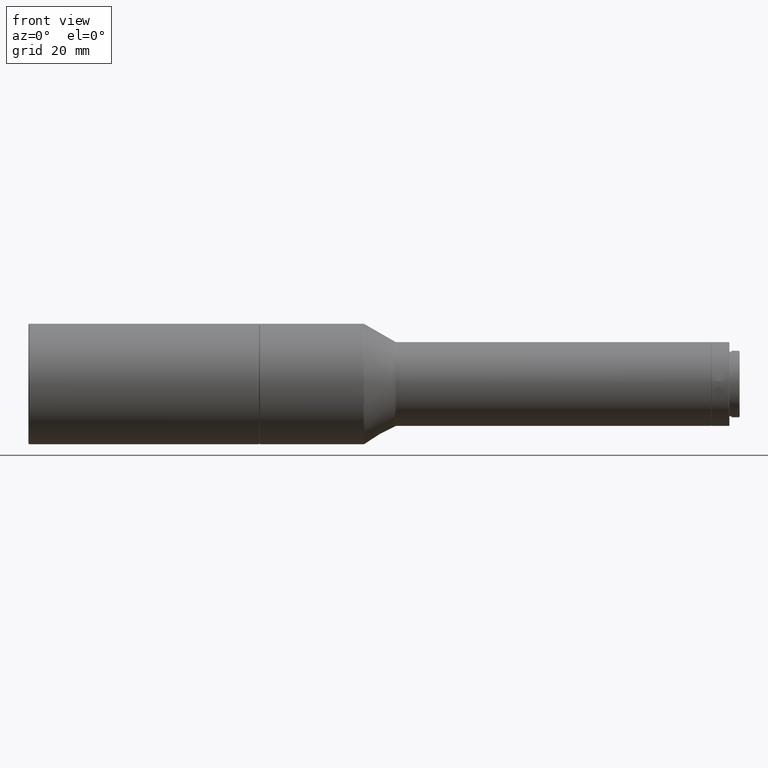
[diagram: clean part render]
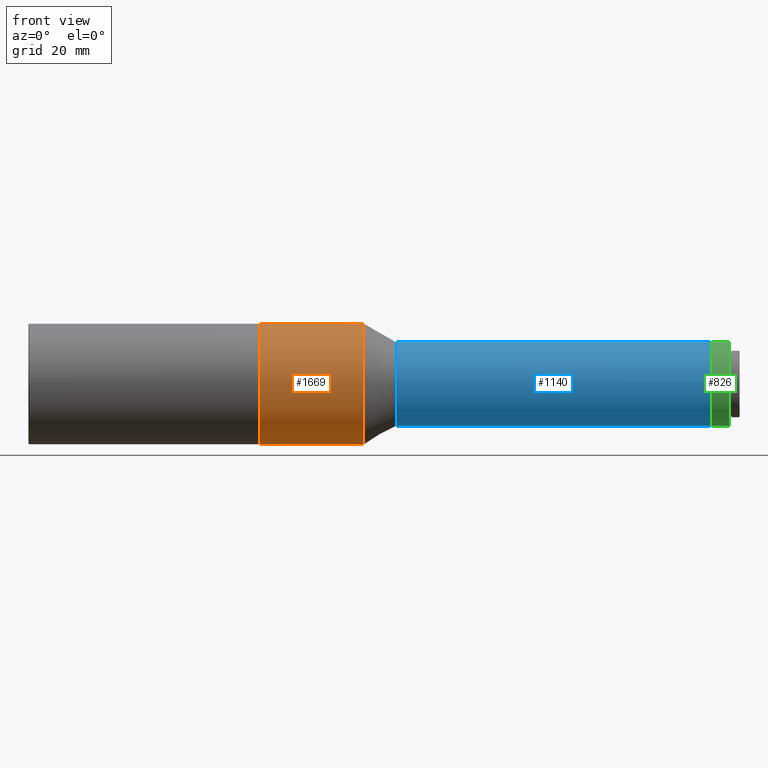
[diagram: same view with three faces highlighted in distinct colors, each labeled with its STEP entity id]
A machine part, front view with three faces highlighted in distinct colors.
Their STEP definitions:

[orange] entity #1669 — the highlighted cylindrical surface (bore or boss wall) has radius 23 mm, axis along (-1, -0, -0).
#93 = CIRCLE ( 'NONE', #891, 22.99999999999999645 ) ;
#99 = DIRECTION ( 'NONE',  ( -1.000000000000000000, -0.000000000000000000, -0.000000000000000000 ) ) ;
#127 = CIRCLE ( 'NONE', #1225, 23.00000000000000000 ) ;
#227 = CARTESIAN_POINT ( 'NONE',  ( 88.21503199999993683, 1.717760224860531704E-06, 0.000000000000000000 ) ) ;
#251 = CARTESIAN_POINT ( 'NONE',  ( 127.6470828075688075, 1.717760224860531704E-06, 0.000000000000000000 ) ) ;
#266 = EDGE_LOOP ( 'NONE', ( #1626 ) ) ;
#453 = EDGE_CURVE ( 'NONE', #756, #756, #127, .T. ) ;
#756 = VERTEX_POINT ( 'NONE', #923 ) ;
#779 = AXIS2_PLACEMENT_3D ( 'NONE', #1876, #99, #1684 ) ;
#816 = ORIENTED_EDGE ( 'NONE', *, *, #1301, .F. ) ;
#881 = DIRECTION ( 'NONE',  ( -1.000000000000000000, -0.000000000000000000, -0.000000000000000000 ) ) ;
#891 = AXIS2_PLACEMENT_3D ( 'NONE', #227, #1324, #1486 ) ;
#923 = CARTESIAN_POINT ( 'NONE',  ( 127.6470828075688075, 1.717760224860531704E-06, 23.00000000000000000 ) ) ;
#1075 = CYLINDRICAL_SURFACE ( 'NONE', #779, 23.00000000000000000 ) ;
#1129 = DIRECTION ( 'NONE',  ( 0.000000000000000000, 0.000000000000000000, 1.000000000000000000 ) ) ;
#1225 = AXIS2_PLACEMENT_3D ( 'NONE', #251, #881, #1129 ) ;
#1301 = EDGE_CURVE ( 'NONE', #1957, #1957, #93, .T. ) ;
#1307 = FACE_OUTER_BOUND ( 'NONE', #1361, .T. ) ;
#1324 = DIRECTION ( 'NONE',  ( -1.000000000000000000, -0.000000000000000000, -0.000000000000000000 ) ) ;
#1361 = EDGE_LOOP ( 'NONE', ( #816 ) ) ;
#1486 = DIRECTION ( 'NONE',  ( 0.000000000000000000, 0.000000000000000000, -1.000000000000000000 ) ) ;
#1514 = FACE_OUTER_BOUND ( 'NONE', #266, .T. ) ;
#1604 = CARTESIAN_POINT ( 'NONE',  ( 88.21503199999993683, 1.717760224860531704E-06, -22.99999999999999645 ) ) ;
#1626 = ORIENTED_EDGE ( 'NONE', *, *, #453, .T. ) ;
#1669 = ADVANCED_FACE ( 'NONE', ( #1307, #1514 ), #1075, .T. ) ;
#1684 = DIRECTION ( 'NONE',  ( 0.000000000000000000, 0.000000000000000000, 1.000000000000000000 ) ) ;
#1876 = CARTESIAN_POINT ( 'NONE',  ( 87.91503199999996809, 1.717760224860531704E-06, 0.000000000000000000 ) ) ;
#1957 = VERTEX_POINT ( 'NONE', #1604 ) ;

[blue] entity #1140 — the highlighted cylindrical surface (bore or boss wall) has radius 16 mm, axis along (-1, -0, -0).
#27 = AXIS2_PLACEMENT_3D ( 'NONE', #1594, #1120, #787 ) ;
#51 = EDGE_CURVE ( 'NONE', #2069, #2069, #1256, .T. ) ;
#200 = CIRCLE ( 'NONE', #1193, 16.00000000000000000 ) ;
#205 = ORIENTED_EDGE ( 'NONE', *, *, #1645, .T. ) ;
#256 = CARTESIAN_POINT ( 'NONE',  ( 140.3073368454131469, 1.717760224860531704E-06, 0.000000000000000000 ) ) ;
#354 = DIRECTION ( 'NONE',  ( -1.000000000000000000, -0.000000000000000000, -0.000000000000000000 ) ) ;
#711 = DIRECTION ( 'NONE',  ( 0.000000000000000000, 0.000000000000000000, 1.000000000000000000 ) ) ;
#787 = DIRECTION ( 'NONE',  ( 0.000000000000000000, 0.000000000000000000, 1.000000000000000000 ) ) ;
#956 = FACE_OUTER_BOUND ( 'NONE', #1600, .T. ) ;
#979 = ORIENTED_EDGE ( 'NONE', *, *, #51, .T. ) ;
#990 = DIRECTION ( 'NONE',  ( 0.000000000000000000, 0.000000000000000000, 1.000000000000000000 ) ) ;
#994 = AXIS2_PLACEMENT_3D ( 'NONE', #256, #1376, #711 ) ;
#1120 = DIRECTION ( 'NONE',  ( -1.000000000000000000, -0.000000000000000000, -0.000000000000000000 ) ) ;
#1140 = ADVANCED_FACE ( 'NONE', ( #2081, #956 ), #1279, .T. ) ;
#1149 = CARTESIAN_POINT ( 'NONE',  ( 260.2850319999999442, 1.717760224860531704E-06, 0.000000000000000000 ) ) ;
#1193 = AXIS2_PLACEMENT_3D ( 'NONE', #1149, #354, #990 ) ;
#1256 = CIRCLE ( 'NONE', #994, 16.00000000000000000 ) ;
#1279 = CYLINDRICAL_SURFACE ( 'NONE', #27, 16.00000000000000000 ) ;
#1309 = CARTESIAN_POINT ( 'NONE',  ( 260.2850319999999442, 1.717760224860531704E-06, 16.00000000000000000 ) ) ;
#1376 = DIRECTION ( 'NONE',  ( 1.000000000000000000, 0.000000000000000000, 0.000000000000000000 ) ) ;
#1446 = VERTEX_POINT ( 'NONE', #1309 ) ;
#1594 = CARTESIAN_POINT ( 'NONE',  ( 87.91503199999996809, 1.717760224860531704E-06, 0.000000000000000000 ) ) ;
#1600 = EDGE_LOOP ( 'NONE', ( #205 ) ) ;
#1602 = EDGE_LOOP ( 'NONE', ( #979 ) ) ;
#1645 = EDGE_CURVE ( 'NONE', #1446, #1446, #200, .T. ) ;
#2069 = VERTEX_POINT ( 'NONE', #2080 ) ;
#2080 = CARTESIAN_POINT ( 'NONE',  ( 140.3073368454131469, 1.717760224860531704E-06, 16.00000000000000000 ) ) ;
#2081 = FACE_OUTER_BOUND ( 'NONE', #1602, .T. ) ;

[green] entity #826 — the highlighted cylindrical surface (bore or boss wall) has radius 16 mm, axis along (1, 0, 0).
#18 = VERTEX_POINT ( 'NONE', #1637 ) ;
#31 = CARTESIAN_POINT ( 'NONE',  ( 263.8865417506788162, 8.654489448313370303, -13.45784586514715642 ) ) ;
#47 = CARTESIAN_POINT ( 'NONE',  ( 262.8850319999999670, -15.95109542318903095, 1.250000000000048184 ) ) ;
#54 = DIRECTION ( 'NONE',  ( 0.000000000000000000, 0.000000000000000000, -1.000000000000000000 ) ) ;
#67 = CARTESIAN_POINT ( 'NONE',  ( 263.8865417502762512, 7.327594251807307835, 14.22392916402854901 ) ) ;
#72 = CARTESIAN_POINT ( 'NONE',  ( 262.5596543807018861, 6.921830633143083666, -14.42540544592684526 ) ) ;
#84 = CARTESIAN_POINT ( 'NONE',  ( 261.6350982622741412, 8.143895434440517889, -13.77332400349853891 ) ) ;
#92 = CARTESIAN_POINT ( 'NONE',  ( 261.6668430589365357, 7.716792845310552096, 14.01693875927085919 ) ) ;
#94 = CARTESIAN_POINT ( 'NONE',  ( 262.2532279548126439, -15.96287010907728643, 1.091225569029456333 ) ) ;
#105 = CARTESIAN_POINT ( 'NONE',  ( 261.8839071300955652, -15.98205339488989196, 0.7666082579902054883 ) ) ;
#136 = CARTESIAN_POINT ( 'NONE',  ( 262.1182051908613175, -15.96908795564440098, 1.000973949594229584 ) ) ;
#148 = CARTESIAN_POINT ( 'NONE',  ( 263.5180736612118721, 8.925915520098991252, -13.27901151428509685 ) ) ;
#158 = CARTESIAN_POINT ( 'NONE',  ( 263.2113376651450949, 9.031705447109589002, -13.20728631281062171 ) ) ;
#168 = CARTESIAN_POINT ( 'NONE',  ( 263.6511255302078780, 7.117204195221825458, -14.33035800567806106 ) ) ;
#182 = DIRECTION ( 'NONE',  ( 0.000000000000000000, 0.000000000000000000, -1.000000000000000000 ) ) ;
#201 = CARTESIAN_POINT ( 'NONE',  ( 263.9767985914434121, 7.447797461655481399, 14.16170142186516578 ) ) ;
#215 = CARTESIAN_POINT ( 'NONE',  ( 262.8850319999998533, 9.058082042967463110, 13.18905534229347687 ) ) ;
#219 = CARTESIAN_POINT ( 'NONE',  ( 261.7936899172568701, 8.541098557429339877, -13.53045092607513133 ) ) ;
#239 = B_SPLINE_CURVE_WITH_KNOTS ( 'NONE', 3,
 ( #1543, #597, #1883, #912, #260, #455, #1552, #1723, #1563, #1519, #1532, #728, #105, #136, #94, #735, #1369, #1757 ),
 .UNSPECIFIED., .F., .F.,
 ( 4, 2, 2, 2, 2, 2, 2, 2, 4 ),
 ( 0.000000000000000000, 0.1250000000000000000, 0.2500000000000000000, 0.3750000000000000000, 0.5000000000000000000, 0.6250000000000000000, 0.7500000000000000000, 0.8750000000000000000, 1.000000000000000000 ),
 .UNSPECIFIED. ) ;
#244 = ORIENTED_EDGE ( 'NONE', *, *, #1048, .T. ) ;
#260 = CARTESIAN_POINT ( 'NONE',  ( 262.1182038524256654, -15.96908849921261542, -1.000974192763520509 ) ) ;
#270 = CARTESIAN_POINT ( 'NONE',  ( 262.1180383869070170, 7.117826366496228019, 14.33004969393332573 ) ) ;
#320 = EDGE_CURVE ( 'NONE', #627, #627, #1690, .T. ) ;
#324 = DIRECTION ( 'NONE',  ( 1.000000000000000000, 0.000000000000000000, 0.000000000000000000 ) ) ;
#334 = CARTESIAN_POINT ( 'NONE',  ( 262.8850319999999670, 9.058082042965525105, -13.18905534229541132 ) ) ;
#346 = FACE_OUTER_BOUND ( 'NONE', #1168, .T. ) ;
#371 = DIRECTION ( 'NONE',  ( -1.000000000000000000, -0.000000000000000000, -0.000000000000000000 ) ) ;
#373 = CARTESIAN_POINT ( 'NONE',  ( 263.8860187430610154, -15.98204449584916098, 0.7667732230867445598 ) ) ;
#376 = CARTESIAN_POINT ( 'NONE',  ( 262.8850319999999670, 6.893018533504183587, 14.43905534229549303 ) ) ;
#377 = CARTESIAN_POINT ( 'NONE',  ( 262.5592381691103583, 9.031753070815911499, -13.20725221924366899 ) ) ;
#382 = CARTESIAN_POINT ( 'NONE',  ( 263.9757862572647014, 8.541995228628676884, 13.52988603767827058 ) ) ;
#398 = CARTESIAN_POINT ( 'NONE',  ( 262.5592381686449812, 6.921941977603357721, 14.42535222187860455 ) ) ;
#399 = CARTESIAN_POINT ( 'NONE',  ( 262.2532795158577983, 8.926488288183152875, -13.27862497377643081 ) ) ;
#407 = CARTESIAN_POINT ( 'NONE',  ( 262.8850319999998533, 9.058082042967463110, 13.18905534229347687 ) ) ;
#409 = EDGE_CURVE ( 'NONE', #1298, #545, #1142, .T. ) ;
#417 = CARTESIAN_POINT ( 'NONE',  ( 261.8839280384415815, 7.327108789735783390, 14.22417849707174042 ) ) ;
#455 = CARTESIAN_POINT ( 'NONE',  ( 261.8837571480594306, -15.98206122468978307, -0.7664566497606775108 ) ) ;
#494 = CARTESIAN_POINT ( 'NONE',  ( 264.1351703509934623, 8.142772003723584007, -13.77398989174036892 ) ) ;
#498 = EDGE_LOOP ( 'NONE', ( #2039, #809 ) ) ;
#509 = CARTESIAN_POINT ( 'NONE',  ( 262.8850319999999670, 6.893018533504183587, 14.43905534229549303 ) ) ;
#536 = ORIENTED_EDGE ( 'NONE', *, *, #1970, .T. ) ;
#544 = CARTESIAN_POINT ( 'NONE',  ( 262.1182387919977828, 7.117630187463616309, -14.33014895686891244 ) ) ;
#545 = VERTEX_POINT ( 'NONE', #1384 ) ;
#548 = CARTESIAN_POINT ( 'NONE',  ( 263.5160075917592621, 8.926847165596335287, 13.27838304804266301 ) ) ;
#561 = VERTEX_POINT ( 'NONE', #578 ) ;
#563 = CARTESIAN_POINT ( 'NONE',  ( 262.5596543805107217, 9.031854836130827735, 13.20718240433535406 ) ) ;
#565 = CARTESIAN_POINT ( 'NONE',  ( 262.1180383871577533, 8.851276466136615895, -13.32924181225595461 ) ) ;
#575 = CARTESIAN_POINT ( 'NONE',  ( 262.2532795163228911, 7.036384986847992629, 14.36987662356906625 ) ) ;
#578 = CARTESIAN_POINT ( 'NONE',  ( 262.8850319999998533, 6.893018533501573231, -14.43905534229623377 ) ) ;
#597 = CARTESIAN_POINT ( 'NONE',  ( 262.7191431077444577, -15.95110107501758812, -1.249927877707266211 ) ) ;
#600 = ORIENTED_EDGE ( 'NONE', *, *, #1223, .T. ) ;
#601 = CARTESIAN_POINT ( 'NONE',  ( 262.8850319999999670, -15.95109542318904161, -1.249999999999958700 ) ) ;
#627 = VERTEX_POINT ( 'NONE', #902 ) ;
#650 = DIRECTION ( 'NONE',  ( -1.000000000000000000, -0.000000000000000000, -0.000000000000000000 ) ) ;
#663 = CARTESIAN_POINT ( 'NONE',  ( 263.6525279862375442, 7.118153228570799129, 14.32988807623666005 ) ) ;
#666 = CARTESIAN_POINT ( 'NONE',  ( 263.5160075913091191, 7.035996034393022569, -14.37006645761865720 ) ) ;
#671 = VERTEX_POINT ( 'NONE', #914 ) ;
#673 = CARTESIAN_POINT ( 'NONE',  ( 263.0514464439738163, 6.893084755208353620, 14.43902372891711394 ) ) ;
#692 = CARTESIAN_POINT ( 'NONE',  ( 263.6519351464448846, -15.96909343574619911, 1.000870784790197865 ) ) ;
#693 = EDGE_LOOP ( 'NONE', ( #244, #536 ) ) ;
#700 = CARTESIAN_POINT ( 'NONE',  ( 263.5180736613236263, 7.037006125108548282, 14.36957386195770958 ) ) ;
#707 = B_SPLINE_CURVE_WITH_KNOTS ( 'NONE', 3,
 ( #215, #847, #1485, #548, #1178, #1813, #382, #1019, #857, #1185, #1492, #201, #67, #663, #700, #1819, #673, #509 ),
 .UNSPECIFIED., .F., .F.,
 ( 4, 2, 2, 2, 2, 2, 2, 2, 4 ),
 ( 0.000000000000000000, 0.1250000000000000000, 0.2500000000000000000, 0.3750000000000000000, 0.5000000000000000000, 0.6250000000000000000, 0.7500000000000000000, 0.8750000000000000000, 1.000000000000000000 ),
 .UNSPECIFIED. ) ;
#714 = CARTESIAN_POINT ( 'NONE',  ( 261.8837226736723096, 8.654759895094962019, 13.45767309198198802 ) ) ;
#715 = CARTESIAN_POINT ( 'NONE',  ( 261.6666206446693650, 7.717496319356956569, -14.01655350053406934 ) ) ;
#727 = CARTESIAN_POINT ( 'NONE',  ( 261.7936899171619416, 7.447167524979119158, 14.16203230215137587 ) ) ;
#728 = CARTESIAN_POINT ( 'NONE',  ( 261.7936960675481259, -15.98825957936051267, 0.6316020422594721406 ) ) ;
#735 = CARTESIAN_POINT ( 'NONE',  ( 262.5594103053257413, -15.95368429059733018, 1.218176074827837185 ) ) ;
#760 = CARTESIAN_POINT ( 'NONE',  ( 263.5159482645557318, -15.96283693916866397, -1.091699578051923636 ) ) ;
#778 = CARTESIAN_POINT ( 'NONE',  ( 262.8850319999999670, -15.95109542318904161, -1.249999999999958700 ) ) ;
#800 = CARTESIAN_POINT ( 'NONE',  ( 263.8854759001243337, 7.326337374640040423, -14.22457512612655250 ) ) ;
#806 = VERTEX_POINT ( 'NONE', #778 ) ;
#809 = ORIENTED_EDGE ( 'NONE', *, *, #1632, .T. ) ;
#821 = CARTESIAN_POINT ( 'NONE',  ( 264.1030160219970071, 7.716047083537686646, -14.01735043598937480 ) ) ;
#826 = ADVANCED_FACE ( 'NONE', ( #958, #346, #1415, #2070, #1778 ), #983, .T. ) ;
#846 = CARTESIAN_POINT ( 'NONE',  ( 263.9760233441886612, -15.98823599580383181, 0.6323381910674071849 ) ) ;
#847 = CARTESIAN_POINT ( 'NONE',  ( 263.0508089081773164, 9.058021879851608560, 13.18909666157901484 ) ) ;
#848 = ORIENTED_EDGE ( 'NONE', *, *, #1724, .T. ) ;
#857 = CARTESIAN_POINT ( 'NONE',  ( 264.1348928540188012, 8.144488084999244037, 13.77297525160916791 ) ) ;
#862 = CARTESIAN_POINT ( 'NONE',  ( 262.7189929219930491, 9.058022932917271675, -13.18909593834652583 ) ) ;
#900 = CARTESIAN_POINT ( 'NONE',  ( 261.6350982623686718, 7.856103341006225094, 13.93948084611347582 ) ) ;
#902 = CARTESIAN_POINT ( 'NONE',  ( 260.4850319999999897, 1.717760289898784265E-06, -16.00000000000004619 ) ) ;
#904 = EDGE_LOOP ( 'NONE', ( #848 ) ) ;
#912 = CARTESIAN_POINT ( 'NONE',  ( 262.2535203978468417, -15.96285701394543466, -1.091414406902259104 ) ) ;
#914 = CARTESIAN_POINT ( 'NONE',  ( 262.8850319999999670, 9.058082042965525105, -13.18905534229541132 ) ) ;
#927 = EDGE_CURVE ( 'NONE', #671, #561, #1966, .T. ) ;
#945 = CARTESIAN_POINT ( 'NONE',  ( 263.0508089079983165, 6.893084398610247909, -14.43902389915240292 ) ) ;
#948 = AXIS2_PLACEMENT_3D ( 'NONE', #1609, #371, #54 ) ;
#958 = FACE_OUTER_BOUND ( 'NONE', #904, .T. ) ;
#983 = CYLINDRICAL_SURFACE ( 'NONE', #1727, 16.00000000000004619 ) ;
#984 = DIRECTION ( 'NONE',  ( 0.000000000000000000, 2.275957198723805401E-15, -1.000000000000000000 ) ) ;
#1019 = CARTESIAN_POINT ( 'NONE',  ( 264.1030160218103333, 8.281360605596486124, 13.69096652187621999 ) ) ;
#1034 = CARTESIAN_POINT ( 'NONE',  ( 261.7934036611134161, 8.540738518851279437, 13.53068031747452338 ) ) ;
#1035 = CARTESIAN_POINT ( 'NONE',  ( 261.6349658992566560, 7.856886287614218922, -13.93903955909172687 ) ) ;
#1048 = EDGE_CURVE ( 'NONE', #806, #1499, #239, .T. ) ;
#1074 = CARTESIAN_POINT ( 'NONE',  ( 264.1029210894726020, -15.99739666388176929, -0.3265868371208630605 ) ) ;
#1130 = CARTESIAN_POINT ( 'NONE',  ( 263.6525279858349222, 8.850973069865901266, -13.32944407440002799 ) ) ;
#1142 = B_SPLINE_CURVE_WITH_KNOTS ( 'NONE', 3,
 ( #1700, #1380, #398, #575, #270, #417, #727, #92, #900, #1845, #1229, #1034, #714, #1346, #1998, #563, #1834, #407 ),
 .UNSPECIFIED., .F., .F.,
 ( 4, 2, 2, 2, 2, 2, 2, 2, 4 ),
 ( 0.000000000000000000, 0.1250000000000000000, 0.2500000000000000000, 0.3750000000000000000, 0.5000000000000000000, 0.6250000000000000000, 0.7500000000000000000, 0.8750000000000000000, 1.000000000000000000 ),
 .UNSPECIFIED. ) ;
#1163 = CARTESIAN_POINT ( 'NONE',  ( 261.6668430588418914, 8.280631202404791225, -13.69140653203929148 ) ) ;
#1168 = EDGE_LOOP ( 'NONE', ( #1183 ) ) ;
#1178 = CARTESIAN_POINT ( 'NONE',  ( 263.6511255292622877, 8.851854558222168379, 13.32885715157750006 ) ) ;
#1182 = CARTESIAN_POINT ( 'NONE',  ( 261.8839280381911294, 8.654948107896208498, -13.45755010931446805 ) ) ;
#1183 = ORIENTED_EDGE ( 'NONE', *, *, #320, .F. ) ;
#1185 = CARTESIAN_POINT ( 'NONE',  ( 264.1351703511802498, 7.857241732895080766, 13.93884087046496312 ) ) ;
#1187 = B_SPLINE_CURVE_WITH_KNOTS ( 'NONE', 3,
 ( #1769, #945, #1934, #666, #168, #800, #1617, #821, #1436, #494, #1458, #1947, #31, #1130, #148, #158, #1777, #334 ),
 .UNSPECIFIED., .F., .F.,
 ( 4, 2, 2, 2, 2, 2, 2, 2, 4 ),
 ( 0.000000000000000000, 0.1250000000000000000, 0.2500000000000000000, 0.3750000000000000000, 0.5000000000000000000, 0.6250000000000000000, 0.7500000000000000000, 0.8750000000000000000, 1.000000000000000000 ),
 .UNSPECIFIED. ) ;
#1195 = CARTESIAN_POINT ( 'NONE',  ( 263.2107904776363512, -15.95368939891966065, 1.218105508708031248 ) ) ;
#1223 = EDGE_CURVE ( 'NONE', #561, #671, #1187, .T. ) ;
#1229 = CARTESIAN_POINT ( 'NONE',  ( 261.6666206443130136, 8.279945821387501681, 13.69182312915308408 ) ) ;
#1234 = CARTESIAN_POINT ( 'NONE',  ( 263.8854271248976602, -15.98200753828086995, -0.7675364870605203560 ) ) ;
#1253 = CARTESIAN_POINT ( 'NONE',  ( 263.2101719755492013, -15.95367640791493358, -1.218269353720992765 ) ) ;
#1263 = CARTESIAN_POINT ( 'NONE',  ( 271.2850320000000011, 1.717760253483469057E-06, -9.535484921016463041E-23 ) ) ;
#1268 = CARTESIAN_POINT ( 'NONE',  ( 262.8850319999999670, -15.95109542318903095, 1.250000000000048184 ) ) ;
#1298 = VERTEX_POINT ( 'NONE', #376 ) ;
#1316 = CARTESIAN_POINT ( 'NONE',  ( 263.0510490085181914, -15.95110102575971567, 1.249928506280980400 ) ) ;
#1346 = CARTESIAN_POINT ( 'NONE',  ( 262.1182387923390138, 8.851460519625215184, 13.32912154786223269 ) ) ;
#1347 = CARTESIAN_POINT ( 'NONE',  ( 261.8837226740131996, 7.327309402519087911, -14.22407699120252822 ) ) ;
#1348 = AXIS2_PLACEMENT_3D ( 'NONE', #1597, #650, #984 ) ;
#1369 = CARTESIAN_POINT ( 'NONE',  ( 262.7189812619694180, -15.95110103491086839, 1.249928389504224802 ) ) ;
#1380 = CARTESIAN_POINT ( 'NONE',  ( 262.7189929223783906, 6.893083245739486387, 14.43902444951787523 ) ) ;
#1384 = CARTESIAN_POINT ( 'NONE',  ( 262.8850319999998533, 9.058082042967463110, 13.18905534229347687 ) ) ;
#1387 = CARTESIAN_POINT ( 'NONE',  ( 263.6510870009555561, -15.96905076203351115, -1.001546312831471663 ) ) ;
#1415 = FACE_BOUND ( 'NONE', #1674, .T. ) ;
#1436 = CARTESIAN_POINT ( 'NONE',  ( 264.1348928542055319, 7.855504987329155142, -13.93981972084021059 ) ) ;
#1458 = CARTESIAN_POINT ( 'NONE',  ( 264.1034154091526034, 8.279960390614540700, -13.69181262582920944 ) ) ;
#1484 = CARTESIAN_POINT ( 'NONE',  ( 264.1033745486722069, -15.99742959448662738, 0.3252509542775031681 ) ) ;
#1485 = CARTESIAN_POINT ( 'NONE',  ( 263.2101883147256558, 9.031880448847273257, 13.20716444234100706 ) ) ;
#1492 = CARTESIAN_POINT ( 'NONE',  ( 264.1034154089472281, 7.717479938728287081, 14.01656086612282692 ) ) ;
#1499 = VERTEX_POINT ( 'NONE', #1268 ) ;
#1519 = CARTESIAN_POINT ( 'NONE',  ( 261.6350906081139556, -15.99999318828548844, 0.1661318321890990213 ) ) ;
#1532 = CARTESIAN_POINT ( 'NONE',  ( 261.6669001833059269, -15.99741567550087495, 0.3256642298171473215 ) ) ;
#1543 = CARTESIAN_POINT ( 'NONE',  ( 262.8850319999999670, -15.95109542318904161, -1.249999999999958700 ) ) ;
#1552 = CARTESIAN_POINT ( 'NONE',  ( 261.7933744828574731, -15.98828265333434828, -0.6310592081754228255 ) ) ;
#1557 = CARTESIAN_POINT ( 'NONE',  ( 263.9758628172695580, -15.98822460307608395, -0.6324816652356068936 ) ) ;
#1563 = CARTESIAN_POINT ( 'NONE',  ( 261.6349735850026264, -16.00000336110685595, -0.1651491912867268097 ) ) ;
#1597 = CARTESIAN_POINT ( 'NONE',  ( 260.4850319999999897, 1.717760253483469057E-06, -9.535484921016463041E-23 ) ) ;
#1609 = CARTESIAN_POINT ( 'NONE',  ( 267.1850319999999783, 1.717760253483469057E-06, -9.535484921016463041E-23 ) ) ;
#1617 = CARTESIAN_POINT ( 'NONE',  ( 263.9757862570784823, 7.446229981875136517, -14.16252639788408452 ) ) ;
#1632 = EDGE_CURVE ( 'NONE', #545, #1298, #707, .T. ) ;
#1637 = CARTESIAN_POINT ( 'NONE',  ( 267.1850319999999783, 1.717760253483469057E-06, -16.00000000000004619 ) ) ;
#1643 = B_SPLINE_CURVE_WITH_KNOTS ( 'NONE', 3,
 ( #47, #1316, #1195, #1803, #692, #373, #846, #1484, #1864, #2016, #1074, #1557, #1234, #1387, #760, #1253, #2028, #601 ),
 .UNSPECIFIED., .F., .F.,
 ( 4, 2, 2, 2, 2, 2, 2, 2, 4 ),
 ( 0.000000000000000000, 0.1249999999999999445, 0.2499999999999998890, 0.3749999999999998335, 0.4999999999999997780, 0.6249999999999997780, 0.7499999999999998890, 0.8749999999999998890, 1.000000000000000000 ),
 .UNSPECIFIED. ) ;
#1660 = CARTESIAN_POINT ( 'NONE',  ( 262.7191093738198902, 6.893084303343344210, -14.43902394463158423 ) ) ;
#1674 = EDGE_LOOP ( 'NONE', ( #1801, #600 ) ) ;
#1690 = CIRCLE ( 'NONE', #1348, 16.00000000000004619 ) ;
#1700 = CARTESIAN_POINT ( 'NONE',  ( 262.8850319999999670, 6.893018533504183587, 14.43905534229549303 ) ) ;
#1723 = CARTESIAN_POINT ( 'NONE',  ( 261.6666303012049184, -15.99743531275095165, -0.3247788632896759786 ) ) ;
#1724 = EDGE_CURVE ( 'NONE', #18, #18, #2064, .T. ) ;
#1727 = AXIS2_PLACEMENT_3D ( 'NONE', #1263, #324, #182 ) ;
#1757 = CARTESIAN_POINT ( 'NONE',  ( 262.8850319999999670, -15.95109542318903095, 1.250000000000048184 ) ) ;
#1769 = CARTESIAN_POINT ( 'NONE',  ( 262.8850319999998533, 6.893018533501573231, -14.43905534229623377 ) ) ;
#1777 = CARTESIAN_POINT ( 'NONE',  ( 263.0514464440857409, 9.058021554123920183, -13.18909688528477275 ) ) ;
#1778 = FACE_BOUND ( 'NONE', #693, .T. ) ;
#1798 = CARTESIAN_POINT ( 'NONE',  ( 262.8850319999998533, 6.893018533501573231, -14.43905534229623377 ) ) ;
#1801 = ORIENTED_EDGE ( 'NONE', *, *, #927, .T. ) ;
#1803 = CARTESIAN_POINT ( 'NONE',  ( 263.5167020836135521, -15.96286508539044746, 1.091294965463361466 ) ) ;
#1808 = CARTESIAN_POINT ( 'NONE',  ( 262.8850319999999670, 9.058082042965525105, -13.18905534229541132 ) ) ;
#1813 = CARTESIAN_POINT ( 'NONE',  ( 263.8854759010697535, 8.655677305636215735, 13.45708035919383683 ) ) ;
#1819 = CARTESIAN_POINT ( 'NONE',  ( 263.2113376650333407, 6.921995315033208307, 14.42532802547691873 ) ) ;
#1834 = CARTESIAN_POINT ( 'NONE',  ( 262.7191093736288963, 9.058021966870388297, 13.18909660181559929 ) ) ;
#1845 = CARTESIAN_POINT ( 'NONE',  ( 261.6349658991620117, 8.143121795360640292, 13.77378141164269820 ) ) ;
#1864 = CARTESIAN_POINT ( 'NONE',  ( 264.1351517847554646, -16.00000815819602451, 0.1648622427324145934 ) ) ;
#1883 = CARTESIAN_POINT ( 'NONE',  ( 262.5598055786535951, -15.95367676317064465, -1.218272228637254262 ) ) ;
#1934 = CARTESIAN_POINT ( 'NONE',  ( 263.2101883151759125, 6.921802271477195845, -14.42541864607850144 ) ) ;
#1947 = CARTESIAN_POINT ( 'NONE',  ( 263.9767985912382073, 8.540497038372741656, -13.53083102708725782 ) ) ;
#1966 = B_SPLINE_CURVE_WITH_KNOTS ( 'NONE', 3,
 ( #1808, #862, #377, #399, #565, #1182, #219, #1163, #84, #1035, #715, #1989, #1347, #544, #2001, #72, #1660, #1798 ),
 .UNSPECIFIED., .F., .F.,
 ( 4, 2, 2, 2, 2, 2, 2, 2, 4 ),
 ( 0.000000000000000000, 0.1250000000000000000, 0.2500000000000000000, 0.3750000000000000000, 0.5000000000000000000, 0.6250000000000000000, 0.7500000000000000000, 0.8750000000000000000, 1.000000000000000000 ),
 .UNSPECIFIED. ) ;
#1970 = EDGE_CURVE ( 'NONE', #1499, #806, #1643, .T. ) ;
#1989 = CARTESIAN_POINT ( 'NONE',  ( 261.7934036607567236, 7.447546203193475378, -14.16183519521751144 ) ) ;
#1998 = CARTESIAN_POINT ( 'NONE',  ( 262.2536796607797669, 8.926667279078053241, 13.27850442518238872 ) ) ;
#2001 = CARTESIAN_POINT ( 'NONE',  ( 262.2536796605886025, 7.036191093574473143, -14.36997135977956219 ) ) ;
#2016 = CARTESIAN_POINT ( 'NONE',  ( 264.1349114845567669, -15.99998834919857593, -0.1667736399913742062 ) ) ;
#2028 = CARTESIAN_POINT ( 'NONE',  ( 263.0508292688650158, -15.95110112793242330, -1.249927202467597587 ) ) ;
#2039 = ORIENTED_EDGE ( 'NONE', *, *, #409, .T. ) ;
#2064 = CIRCLE ( 'NONE', #948, 16.00000000000004619 ) ;
#2070 = FACE_BOUND ( 'NONE', #498, .T. ) ;